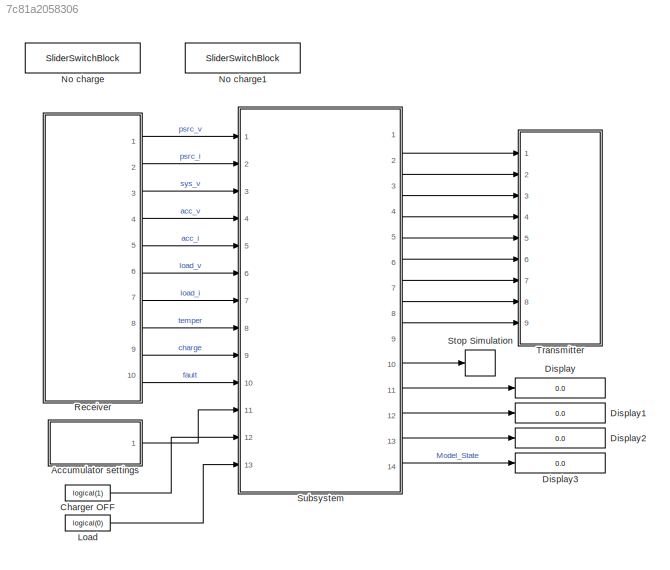
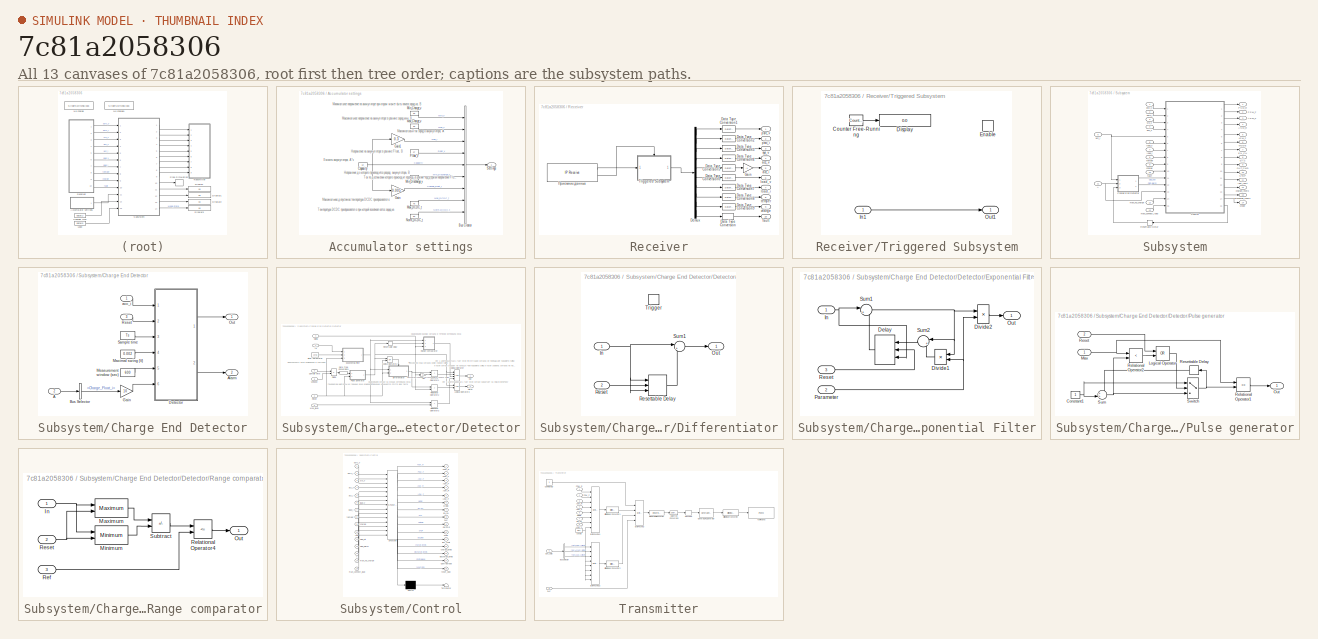
[diagram: thumbnail index - all 13 canvases of the model, root first then tree order]
MODEL slx_7c81a2058306
KIND model
CONFIG AbsTol = auto
CONFIG EnableMultiTasking = off
CONFIG FixedStep = Ts
CONFIG MaxStep = 0.001
CONFIG MinStep = auto
CONFIG PreLoadFcn = load 'MATLAB_accumulator_tester_wrksp.mat'
CONFIG RelTol = 1e-3
CONFIG SampleTimeConstraint = Unconstrained
CONFIG SolverName = FixedStepDiscrete
CONFIG StartTime = 0.0
CONFIG StopTime = inf
WORKSPACE source: mxarray member
WORKSPACE MAX_V: Simulink.Parameter (value not decoded)
WORKSPACE MIN_ACCUM_VOLTAGE: Simulink.Parameter (value not decoded)
WORKSPACE TARGET_ACCUM_CURRENT: Simulink.Parameter (value not decoded)
BLOCK [SubSystem] Accumulator settings
  Ports = [0, 1]
  RequestExecContextInheritance = off
BLOCK [BusCreator] Accumulator settings/Bus Creator
  DisplayOption = bar
  InheritFromInputs = on
  Inputs = 9
  OutDataTypeStr = Bus: Accum_params
  Ports = [9, 1]
BLOCK [Constant] Accumulator settings/Capacity
  NameLocation = top
  OutDataTypeStr = single
  Value = 12
BLOCK [Constant] Accumulator settings/Float_v
  NameLocation = top
  OutDataTypeStr = single
  Value = 27
BLOCK [Gain] Accumulator settings/Gain
  Gain = 0.005
BLOCK [Gain] Accumulator settings/Gain1
  Gain = 0.3
BLOCK [Constant] Accumulator settings/Max_Charge_v
  NameLocation = top
  OutDataTypeStr = single
  Value = 30
BLOCK [Constant] Accumulator settings/Max_DCDC_t
  NameLocation = left
  OutDataTypeStr = single
  Value = 75
BLOCK [Constant] Accumulator settings/Min_Charge_v
  NameLocation = top
  OutDataTypeStr = single
  Value = 20
BLOCK [Constant] Accumulator settings/Min_Discharge_v
  NameLocation = top
  OutDataTypeStr = single
  Value = 19
BLOCK [Constant] Accumulator settings/Norm_DCDC_t
  NameLocation = left
  OutDataTypeStr = single
  Value = 50
BLOCK [Outport] Accumulator settings/Settings
BLOCK [Constant] Charger OFF
  NameLocation = left
  OutDataTypeStr = boolean
  Value = logical(1)
BLOCK [Display] Display
  Decimation = 1
  Ports = [1]
BLOCK [Display] Display1
  Decimation = 1
  Ports = [1]
BLOCK [Display] Display2
  Decimation = 1
  Ports = [1]
BLOCK [Display] Display3
  Decimation = 1
  Ports = [1]
BLOCK [Constant] Load
  NameLocation = left
  OutDataTypeStr = boolean
  Value = logical(0)
BLOCK [SliderSwitchBlock] No charge
BLOCK [SliderSwitchBlock] No charge1
BLOCK [SubSystem] Receiver
  Ports = [0, 10]
  RequestExecContextInheritance = off
BLOCK [DataTypeConversion] Receiver/Data Type Conversion
  OutDataTypeStr = int32
  RndMeth = Floor
  SaturateOnIntegerOverflow = off
BLOCK [DataTypeConversion] Receiver/Data Type Conversion1
  OutDataTypeStr = single
  RndMeth = Floor
  SaturateOnIntegerOverflow = off
BLOCK [DataTypeConversion] Receiver/Data Type Conversion2
  OutDataTypeStr = single
  RndMeth = Floor
  SaturateOnIntegerOverflow = off
BLOCK [DataTypeConversion] Receiver/Data Type Conversion3
  OutDataTypeStr = single
  RndMeth = Floor
  SaturateOnIntegerOverflow = off
BLOCK [DataTypeConversion] Receiver/Data Type Conversion4
  OutDataTypeStr = single
  RndMeth = Floor
  SaturateOnIntegerOverflow = off
BLOCK [DataTypeConversion] Receiver/Data Type Conversion5
  OutDataTypeStr = single
  RndMeth = Floor
  SaturateOnIntegerOverflow = off
BLOCK [DataTypeConversion] Receiver/Data Type Conversion6
  OutDataTypeStr = single
  RndMeth = Floor
  SaturateOnIntegerOverflow = off
BLOCK [DataTypeConversion] Receiver/Data Type Conversion7
  OutDataTypeStr = single
  RndMeth = Floor
  SaturateOnIntegerOverflow = off
BLOCK [DataTypeConversion] Receiver/Data Type Conversion8
  OutDataTypeStr = single
  RndMeth = Floor
  SaturateOnIntegerOverflow = off
BLOCK [DataTypeConversion] Receiver/Data Type Conversion9
  OutDataTypeStr = single
  RndMeth = Floor
  SaturateOnIntegerOverflow = off
BLOCK [Demux] Receiver/Demux
  Outputs = 10
  Ports = [1, 10]
BLOCK [Gain] Receiver/Gain
  Gain = -1
BLOCK [SubSystem] Receiver/Triggered Subsystem
  Ports = [1, 1, 1]
  RequestExecContextInheritance = off
  TreatAsAtomicUnit = on
BLOCK [Reference] Receiver/Triggered Subsystem/Counter Free-Running  REF=simulink/Sources/Counter
Free-Running
  Ports = [0, 1]
  SourceBlock = simulink/Sources/Counter\nFree-Running
  SourceProductBaseCode = SL
  SourceType = Counter Free-Running
BLOCK [Display] Receiver/Triggered Subsystem/Display
  Decimation = 1
  Ports = [1]
BLOCK [EnablePort] Receiver/Triggered Subsystem/Enable
  Ports = []
BLOCK [Inport] Receiver/Triggered Subsystem/In1
BLOCK [Outport] Receiver/Triggered Subsystem/Out1
BLOCK [Outport] Receiver/acc_i
  NameLocation = right
  Port = 5
BLOCK [Outport] Receiver/acc_v
  NameLocation = right
  Port = 4
BLOCK [Outport] Receiver/charge
  NameLocation = right
  Port = 9
BLOCK [Outport] Receiver/fault
  NameLocation = right
  Port = 10
BLOCK [Outport] Receiver/load_i
  NameLocation = right
  Port = 7
BLOCK [Outport] Receiver/load_v
  NameLocation = right
  Port = 6
BLOCK [Outport] Receiver/psrc_i
  NameLocation = right
  Port = 2
BLOCK [Outport] Receiver/psrc_v
  NameLocation = right
BLOCK [Outport] Receiver/sys_v
  NameLocation = right
  Port = 3
BLOCK [Outport] Receiver/temper
  NameLocation = right
  Port = 8
BLOCK [Reference] Receiver/Приемник данных  REF=instrumentlib/TCP//IP Receive
  Ports = [0, 2]
  SourceBlock = instrumentlib/TCP//IP Receive
  SourceProductBaseCode = IC
  SourceType = instrument.system.TCPIPReceive
BLOCK [Stop] Stop Simulation
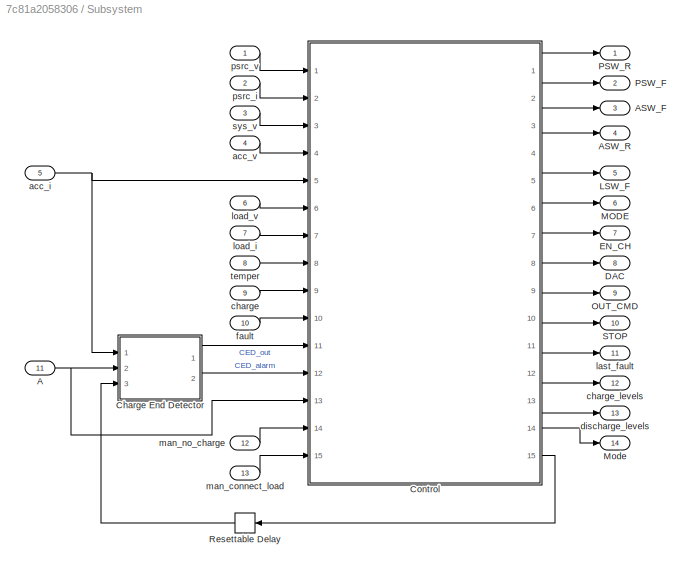
BLOCK [SubSystem] Subsystem
  Ports = [13, 14]
  RequestExecContextInheritance = off
BLOCK [Outport] Subsystem/ STOP
  NameLocation = right
  Port = 10
BLOCK [Inport] Subsystem/A
  NameLocation = left
  Port = 11
BLOCK [Outport] Subsystem/ASW_F
  NameLocation = right
  Port = 3
BLOCK [Outport] Subsystem/ASW_R
  NameLocation = right
  Port = 4
BLOCK [SubSystem] Subsystem/Charge End Detector
  Ports = [3, 2]
  RequestExecContextInheritance = off
BLOCK [Inport] Subsystem/Charge End Detector/A
  NameLocation = left
  OutDataTypeStr = Bus: Accum_params
  Port = 2
BLOCK [Outport] Subsystem/Charge End Detector/Alarm
  NameLocation = right
  OutDataTypeStr = boolean
  Port = 2
BLOCK [BusSelector] Subsystem/Charge End Detector/Bus Selector
  OutputSignals = Charge_Float_i
  Ports = [1, 1]
BLOCK [SubSystem] Subsystem/Charge End Detector/Detector
  Ports = [6, 2]
  RequestExecContextInheritance = off
BLOCK [Outport] Subsystem/Charge End Detector/Detector/Alarm
  Port = 2
BLOCK [DataTypeConversion] Subsystem/Charge End Detector/Detector/Data Type Conversion1
  OutDataTypeStr = uint32
  RndMeth = Floor
  SaturateOnIntegerOverflow = off
BLOCK [SubSystem] Subsystem/Charge End Detector/Detector/Differentiator
  Ports = [2, 1, 0, 1]
  RequestExecContextInheritance = off
  TreatAsAtomicUnit = on
BLOCK [Inport] Subsystem/Charge End Detector/Detector/Differentiator/In
BLOCK [Outport] Subsystem/Charge End Detector/Detector/Differentiator/Out
  SourceOfInitialOutputValue = Input signal
BLOCK [Inport] Subsystem/Charge End Detector/Detector/Differentiator/Reset
  Port = 2
BLOCK [Delay] Subsystem/Charge End Detector/Detector/Differentiator/Resettable Delay
  DelayLength = 1
  ExternalReset = Level
  InitialConditionSource = Input port
  InputPortMap = u0,r5,p4
  Ports = [3, 1]
BLOCK [Sum] Subsystem/Charge End Detector/Detector/Differentiator/Sum1
  Inputs = |+-
  Ports = [2, 1]
BLOCK [TriggerPort] Subsystem/Charge End Detector/Detector/Differentiator/Trigger
  Ports = []
  StatesWhenEnabling = held
  VariantControl = (inherit)
BLOCK [Product] Subsystem/Charge End Detector/Detector/Divide
  Inputs = /*
  Ports = [2, 1]
BLOCK [SubSystem] Subsystem/Charge End Detector/Detector/Exponential Filter
  Ports = [3, 1]
  RequestExecContextInheritance = off
BLOCK [Delay] Subsystem/Charge End Detector/Detector/Exponential Filter/Delay
  DelayLength = 1
  ExternalReset = Rising
  InitialCondition = 0
  InitialConditionSource = Input port
  InputPortMap = u0,r5,p4
  Ports = [3, 1]
BLOCK [Product] Subsystem/Charge End Detector/Detector/Exponential Filter/Divide1
  Inputs = */
  Ports = [2, 1]
BLOCK [Product] Subsystem/Charge End Detector/Detector/Exponential Filter/Divide2
  Inputs = */
  Ports = [2, 1]
BLOCK [Inport] Subsystem/Charge End Detector/Detector/Exponential Filter/In
BLOCK [Outport] Subsystem/Charge End Detector/Detector/Exponential Filter/Out
BLOCK [Inport] Subsystem/Charge End Detector/Detector/Exponential Filter/Parameter
  Port = 2
BLOCK [Inport] Subsystem/Charge End Detector/Detector/Exponential Filter/Reset
  Port = 3
BLOCK [Sum] Subsystem/Charge End Detector/Detector/Exponential Filter/Sum1
  Inputs = |++
  Ports = [2, 1]
BLOCK [Sum] Subsystem/Charge End Detector/Detector/Exponential Filter/Sum2
  Inputs = |+-
  Ports = [2, 1]
BLOCK [Constant] Subsystem/Charge End Detector/Detector/Filter parameter
  OutDataTypeStr = single
  Value = 2048
BLOCK [Gain] Subsystem/Charge End Detector/Detector/Gain
  Gain = -1
BLOCK [Inport] Subsystem/Charge End Detector/Detector/In
  OutDataTypeStr = single
  SampleTime = 0.01
BLOCK [Logic] Subsystem/Charge End Detector/Detector/Logical Operator
  AllPortsSameDT = off
  Inputs = 4
  OutDataTypeStr = boolean
  Ports = [4, 1]
BLOCK [Logic] Subsystem/Charge End Detector/Detector/Logical Operator2
  AllPortsSameDT = off
  Operator = OR
  OutDataTypeStr = boolean
  Ports = [2, 1]
BLOCK [Logic] Subsystem/Charge End Detector/Detector/Logical Operator3
  AllPortsSameDT = off
  OutDataTypeStr = boolean
  Ports = [2, 1]
BLOCK [Inport] Subsystem/Charge End Detector/Detector/Max_level
  OutDataTypeStr = single
  Port = 6
  SampleTime = 0.01
BLOCK [Outport] Subsystem/Charge End Detector/Detector/Out
BLOCK [SubSystem] Subsystem/Charge End Detector/Detector/Pulse generator
  Ports = [2, 1]
  RequestExecContextInheritance = off
BLOCK [Constant] Subsystem/Charge End Detector/Detector/Pulse generator/Constant1
  OutDataTypeStr = uint32
BLOCK [Logic] Subsystem/Charge End Detector/Detector/Pulse generator/Logical Operator
  AllPortsSameDT = off
  Operator = OR
  OutDataTypeStr = boolean
  Ports = [2, 1]
BLOCK [Inport] Subsystem/Charge End Detector/Detector/Pulse generator/Max
BLOCK [Outport] Subsystem/Charge End Detector/Detector/Pulse generator/Out
BLOCK [RelationalOperator] Subsystem/Charge End Detector/Detector/Pulse generator/Relational Operator1
  Operator = ==
  OutDataTypeStr = boolean
  Ports = [2, 1]
  RndMeth = Simplest
BLOCK [RelationalOperator] Subsystem/Charge End Detector/Detector/Pulse generator/Relational Operator2
  Operator = <
  OutDataTypeStr = boolean
  Ports = [2, 1]
  RndMeth = Simplest
BLOCK [Inport] Subsystem/Charge End Detector/Detector/Pulse generator/Reset
  Port = 2
BLOCK [Delay] Subsystem/Charge End Detector/Detector/Pulse generator/Resettable Delay
  DelayLength = 1
  InputPortMap = u0
  Ports = [1, 1]
BLOCK [Sum] Subsystem/Charge End Detector/Detector/Pulse generator/Sum
  Inputs = ++|
  Ports = [2, 1]
BLOCK [Switch] Subsystem/Charge End Detector/Detector/Pulse generator/Switch
  Criteria = u2 > Threshold
  InputSameDT = off
  SaturateOnIntegerOverflow = off
BLOCK [SubSystem] Subsystem/Charge End Detector/Detector/Range comparator
  Ports = [3, 1]
  RequestExecContextInheritance = off
BLOCK [Inport] Subsystem/Charge End Detector/Detector/Range comparator/In
BLOCK [Reference] Subsystem/Charge End Detector/Detector/Range comparator/Maximum  REF=dspstat3/Maximum
  Ports = [2, 1]
  SourceBlock = dspstat3/Maximum
  SourceProductBaseCode = DS
  SourceType = Maximum
  UserDataPersistent = on
BLOCK [Reference] Subsystem/Charge End Detector/Detector/Range comparator/Minimum  REF=dspstat3/Minimum
  Ports = [2, 1]
  SourceBlock = dspstat3/Minimum
  SourceProductBaseCode = DS
  SourceType = Minimum
  UserDataPersistent = on
BLOCK [Outport] Subsystem/Charge End Detector/Detector/Range comparator/Out
BLOCK [Inport] Subsystem/Charge End Detector/Detector/Range comparator/Ref
  Port = 3
BLOCK [RelationalOperator] Subsystem/Charge End Detector/Detector/Range comparator/Relational Operator4
  Operator = <=
  OutDataTypeStr = boolean
  Ports = [2, 1]
  RndMeth = Simplest
BLOCK [Inport] Subsystem/Charge End Detector/Detector/Range comparator/Reset
  Port = 2
BLOCK [Sum] Subsystem/Charge End Detector/Detector/Range comparator/Subtract
  IconShape = rectangular
  Inputs = +-
  Ports = [2, 1]
BLOCK [RelationalOperator] Subsystem/Charge End Detector/Detector/Relational Operator1
  Operator = >
  OutDataTypeStr = boolean
  Ports = [2, 1]
  RndMeth = Simplest
BLOCK [RelationalOperator] Subsystem/Charge End Detector/Detector/Relational Operator2
  Operator = >
  OutDataTypeStr = boolean
  Ports = [2, 1]
  RndMeth = Simplest
BLOCK [RelationalOperator] Subsystem/Charge End Detector/Detector/Relational Operator3
  Operator = <
  OutDataTypeStr = boolean
  Ports = [2, 1]
  RndMeth = Simplest
BLOCK [Inport] Subsystem/Charge End Detector/Detector/Reset
  OutDataTypeStr = boolean
  Port = 2
  SampleTime = 0.01
BLOCK [Delay] Subsystem/Charge End Detector/Detector/Resettable Delay
  DelayLength = 1
  InputPortMap = u0
  Ports = [1, 1]
BLOCK [Inport] Subsystem/Charge End Detector/Detector/Sample time
  OutDataTypeStr = single
  Port = 3
  SampleTime = 0.01
BLOCK [Inport] Subsystem/Charge End Detector/Detector/Swing
  OutDataTypeStr = single
  Port = 4
  SampleTime = 0.01
BLOCK [Inport] Subsystem/Charge End Detector/Detector/Window
  OutDataTypeStr = single
  Port = 5
  SampleTime = 0.01
BLOCK [Gain] Subsystem/Charge End Detector/Gain
  Gain = 10
BLOCK [Constant] Subsystem/Charge End Detector/Maximal swing (V)
  OutDataTypeStr = single
  Value = 0.002
BLOCK [Constant] Subsystem/Charge End Detector/Measurement window (sec)
  OutDataTypeStr = single
  Value = 600
BLOCK [Outport] Subsystem/Charge End Detector/Out
  NameLocation = right
  OutDataTypeStr = boolean
BLOCK [Inport] Subsystem/Charge End Detector/Reset
  NameLocation = left
  Port = 3
BLOCK [Constant] Subsystem/Charge End Detector/Sample time
  OutDataTypeStr = single
  Value = Ts
BLOCK [Inport] Subsystem/Charge End Detector/acc_i
  NameLocation = left
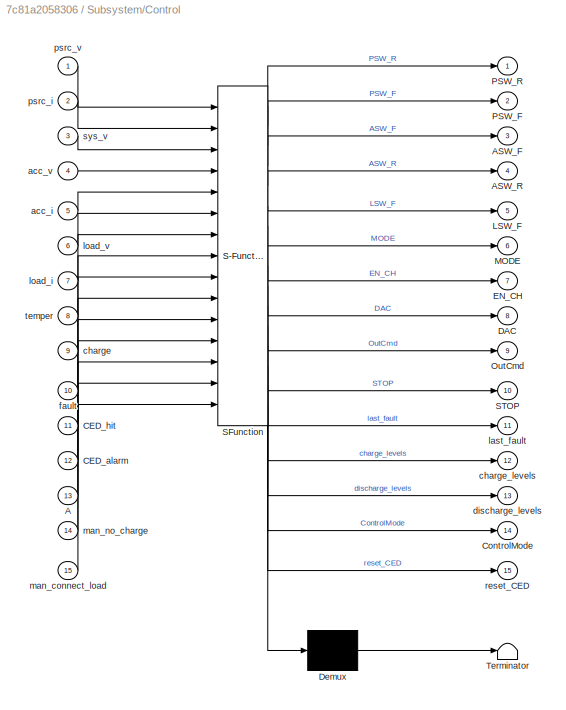
BLOCK [SubSystem] Subsystem/Control
  ErrorFcn = Stateflow.Translate.translate
  PermitHierarchicalResolution = ExplicitOnly
  Ports = [15, 15]
  RequestExecContextInheritance = off
  SFBlockType = Chart
  TreatAsAtomicUnit = on
BLOCK [Demux] Subsystem/Control/ Demux 
  Outputs = 1
  Ports = [1, 1]
BLOCK [S-Function] Subsystem/Control/ SFunction 
  EnableBusSupport = on
  FunctionName = sf_sfun
  PortCounts = [15 16]
  Ports = [15, 16]
  SFcnIsStateOwnerBlock = off
  SFunctionDeploymentMode = off
  Tag = Stateflow S-Function 3
BLOCK [Outport] Subsystem/Control/ STOP
  Port = 10
BLOCK [Terminator] Subsystem/Control/ Terminator 
BLOCK [Inport] Subsystem/Control/A
  Port = 13
BLOCK [Outport] Subsystem/Control/ASW_F
  Port = 3
BLOCK [Outport] Subsystem/Control/ASW_R
  Port = 4
BLOCK [Inport] Subsystem/Control/CED_alarm
  Port = 12
BLOCK [Inport] Subsystem/Control/CED_hit
  Port = 11
BLOCK [Outport] Subsystem/Control/ControlMode
  Port = 14
BLOCK [Outport] Subsystem/Control/DAC
  Port = 8
BLOCK [Outport] Subsystem/Control/EN_CH
  Port = 7
BLOCK [Outport] Subsystem/Control/LSW_F
  Port = 5
BLOCK [Outport] Subsystem/Control/MODE
  Port = 6
BLOCK [Outport] Subsystem/Control/OutCmd
  Port = 9
BLOCK [Outport] Subsystem/Control/PSW_F
  Port = 2
BLOCK [Outport] Subsystem/Control/PSW_R
BLOCK [Inport] Subsystem/Control/acc_i
  Port = 5
BLOCK [Inport] Subsystem/Control/acc_v
  Port = 4
BLOCK [Inport] Subsystem/Control/charge
  Port = 9
BLOCK [Outport] Subsystem/Control/charge_levels
  Port = 12
BLOCK [Outport] Subsystem/Control/discharge_levels
  Port = 13
BLOCK [Inport] Subsystem/Control/fault
  Port = 10
BLOCK [Outport] Subsystem/Control/last_fault
  Port = 11
BLOCK [Inport] Subsystem/Control/load_i
  Port = 7
BLOCK [Inport] Subsystem/Control/load_v
  Port = 6
BLOCK [Inport] Subsystem/Control/man_connect_load
  Port = 15
BLOCK [Inport] Subsystem/Control/man_no_charge
  Port = 14
BLOCK [Inport] Subsystem/Control/psrc_i
  Port = 2
BLOCK [Inport] Subsystem/Control/psrc_v
BLOCK [Outport] Subsystem/Control/reset_CED
  Port = 15
BLOCK [Inport] Subsystem/Control/sys_v
  Port = 3
BLOCK [Inport] Subsystem/Control/temper
  Port = 8
BLOCK [Outport] Subsystem/DAC
  NameLocation = right
  Port = 8
BLOCK [Outport] Subsystem/EN_CH
  NameLocation = right
  Port = 7
BLOCK [Outport] Subsystem/LSW_F
  NameLocation = right
  Port = 5
BLOCK [Outport] Subsystem/MODE
  NameLocation = right
  Port = 6
BLOCK [Outport] Subsystem/Mode
  NameLocation = right
  Port = 14
BLOCK [Outport] Subsystem/OUT_CMD
  NameLocation = right
  Port = 9
BLOCK [Outport] Subsystem/PSW_F
  NameLocation = right
  Port = 2
BLOCK [Outport] Subsystem/PSW_R
  NameLocation = right
BLOCK [Delay] Subsystem/Resettable Delay
  DelayLength = 1
  InputPortMap = u0
  Ports = [1, 1]
BLOCK [Inport] Subsystem/acc_i
  NameLocation = left
  Port = 5
BLOCK [Inport] Subsystem/acc_v
  NameLocation = left
  Port = 4
BLOCK [Inport] Subsystem/charge
  NameLocation = left
  Port = 9
BLOCK [Outport] Subsystem/charge_levels
  NameLocation = right
  Port = 12
BLOCK [Outport] Subsystem/discharge_levels
  NameLocation = right
  Port = 13
BLOCK [Inport] Subsystem/fault
  NameLocation = left
  Port = 10
BLOCK [Outport] Subsystem/last_fault
  NameLocation = right
  Port = 11
BLOCK [Inport] Subsystem/load_i
  NameLocation = left
  Port = 7
BLOCK [Inport] Subsystem/load_v
  NameLocation = left
  Port = 6
BLOCK [Inport] Subsystem/man_connect_load
  NameLocation = left
  Port = 13
BLOCK [Inport] Subsystem/man_no_charge
  NameLocation = left
  Port = 12
BLOCK [Inport] Subsystem/psrc_i
  NameLocation = left
  Port = 2
BLOCK [Inport] Subsystem/psrc_v
  NameLocation = left
BLOCK [Inport] Subsystem/sys_v
  NameLocation = left
  Port = 3
BLOCK [Inport] Subsystem/temper
  NameLocation = left
  Port = 8
BLOCK [SubSystem] Transmitter
  Ports = [9]
  RequestExecContextInheritance = off
BLOCK [Inport] Transmitter/ASW_F
  NameLocation = left
  OutDataTypeStr = boolean
  Port = 4
  PortDimensions = 1
  VarSizeSig = No
BLOCK [Inport] Transmitter/ASW_R
  NameLocation = left
  OutDataTypeStr = boolean
  Port = 3
  PortDimensions = 1
  VarSizeSig = No
BLOCK [Reference] Transmitter/Bit to Integer Converter  REF=simulink/Logic and Bit
Operations/Bit to Integer
Converter
  Ports = [1, 1]
  SourceBlock = simulink/Logic and Bit\nOperations/Bit to Integer\nConverter
  SourceProductBaseCode = SL
  SourceType = Bit to Integer Converter
BLOCK [Reference] Transmitter/Bit to Integer Converter1  REF=simulink/Logic and Bit
Operations/Bit to Integer
Converter
  Ports = [1, 1]
  SourceBlock = simulink/Logic and Bit\nOperations/Bit to Integer\nConverter
  SourceProductBaseCode = SL
  SourceType = Bit to Integer Converter
BLOCK [Reference] Transmitter/Bit to Integer Converter2  REF=simulink/Logic and Bit
Operations/Bit to Integer
Converter
  Ports = [1, 1]
  SourceBlock = simulink/Logic and Bit\nOperations/Bit to Integer\nConverter
  SourceProductBaseCode = SL
  SourceType = Bit to Integer Converter
BLOCK [BusSelector] Transmitter/Bus Selector
  OutputSignals = Set_PSRC_i_offset,Set_Accum_i_offset,Set_Load_i_offset
  Ports = [1, 3]
BLOCK [Reference] Transmitter/Byte Packing  REF=slrealtimeutilitieslib/Byte Packing
  Ports = [4, 1]
  SourceBlock = slrealtimeutilitieslib/Byte Packing
  SourceProductBaseCode = XP
  SourceType = slrealtimebytepacking
BLOCK [Reference] Transmitter/Byte Packing1  REF=slrealtimeutilitieslib/Byte Packing
  Ports = [8, 1]
  SourceBlock = slrealtimeutilitieslib/Byte Packing
  SourceProductBaseCode = XP
  SourceType = slrealtimebytepacking
BLOCK [Reference] Transmitter/Byte Packing2  REF=slrealtimeutilitieslib/Byte Packing
  Ports = [8, 1]
  SourceBlock = slrealtimeutilitieslib/Byte Packing
  SourceProductBaseCode = XP
  SourceType = slrealtimebytepacking
BLOCK [Constant] Transmitter/Command ID
  OutDataTypeStr = uint32
  Value = 3
BLOCK [Inport] Transmitter/DAC
  OutDataTypeStr = uint16
  Port = 8
  PortDimensions = 1
  SignalType = real
  VarSizeSig = No
BLOCK [DataTypeConversion] Transmitter/Data Type Conversion
  OutDataTypeStr = boolean
  RndMeth = Floor
  SaturateOnIntegerOverflow = off
BLOCK [Inport] Transmitter/EN_CH
  NameLocation = left
  OutDataTypeStr = boolean
  Port = 7
  PortDimensions = 1
  VarSizeSig = No
BLOCK [Reference] Transmitter/General CRC Generator  REF=commcrc2/General CRC
Generator
  Ports = [1, 1]
  SourceBlock = commcrc2/General CRC\nGenerator
  SourceProductBaseCode = CM
  SourceType = General CRC Generator
BLOCK [Reference] Transmitter/Integer to Bit Converter  REF=simulink/Logic and Bit
Operations/Integer to Bit
Converter
  Ports = [1, 1]
  SourceBlock = simulink/Logic and Bit\nOperations/Integer to Bit\nConverter
  SourceProductBaseCode = SL
  SourceType = Integer to Bit Converter
BLOCK [Inport] Transmitter/LSW_F
  NameLocation = left
  OutDataTypeStr = boolean
  Port = 5
  PortDimensions = 1
  VarSizeSig = No
BLOCK [Inport] Transmitter/MODE
  NameLocation = left
  OutDataTypeStr = boolean
  Port = 6
  PortDimensions = 1
  VarSizeSig = No
BLOCK [Inport] Transmitter/OUT_CMD
  OutDataTypeStr = Bus: OutCommands
  Port = 9
  PortDimensions = 1
  SignalType = real
  VarSizeSig = No
BLOCK [Inport] Transmitter/PSW_F
  NameLocation = left
  OutDataTypeStr = boolean
  Port = 2
  PortDimensions = 1
  VarSizeSig = No
BLOCK [Inport] Transmitter/PSW_R
  NameLocation = left
  OutDataTypeStr = boolean
  PortDimensions = 1
  VarSizeSig = No
BLOCK [Reshape] Transmitter/Reshape
  OutputDimensionality = Customize
  OutputDimensions = [64,1]
  Ports = [1, 1]
BLOCK [Reference] Transmitter/TCP//IP Send  REF=instrumentlib/TCP//IP Send
  Ports = [1]
  SourceBlock = instrumentlib/TCP//IP Send
  SourceProductBaseCode = IC
  SourceType = instrument.system.TCPIPSend
BLOCK [Constant] Transmitter/const0
  OutDataTypeStr = boolean
  Value = false
ANNOTATION Accumulator settings: Емкость аккумулятора, А*ч
ANNOTATION Accumulator settings: Максимальная допустимая температура DCDC преобразователя
ANNOTATION Accumulator settings: Максимальное напряжение на аккмуляторе в режиме зарядкми, В
ANNOTATION Accumulator settings: Максимальный ток заряда аккумулятора, А
ANNOTATION Accumulator settings: Минимальное напряжение на аккмуляторе при ктором может быть начата зарядка, В
ANNOTATION Accumulator settings: Напряжение до которого производится разряд аккумулятора, В
ANNOTATION Accumulator settings: Напряжение на аккумуляторе в режиме Float, В
ANNOTATION Accumulator settings: Температура DCDC преобразователя при которой возобновляется зарадка
ANNOTATION Accumulator settings: Ток по достижении которого происходит переход в режим поддержки напряжения Float, А
ANNOTATION Subsystem/Charge End Detector/Detector: Генерируем импульсы на границе окна измерения
ANNOTATION Subsystem/Charge End Detector/Detector: Длительность окна измерения в секундах
ANNOTATION Subsystem/Charge End Detector/Detector: Лог 1 длительностью 1 такт если сигнал нарастает на любую величину
ANNOTATION Subsystem/Charge End Detector/Detector: Лог 1 длительностью 1 такт если флуктуации сигнала не превышают параметр swing и если сигнал спадает не больше чем параметр swing и если уровень сигнала не превышает Max_level
ANNOTATION Subsystem/Charge End Detector/Detector: Сравниваем размах сигнала в течении интервала окна
ANNOTATION Subsystem/Charge End Detector/Detector: Сравниваем сигнал на концах интервала окна. Сравнение начинается спустя два такта
ANNOTATION Subsystem/Charge End Detector/Detector: Фиксируем подъем сигнала выше уровня swing
ANNOTATION Subsystem/Charge End Detector/Detector: Фиксируем спад сигнала ниже уровня swing
LINE Accumulator settings/Bus Creator:1 -> Accumulator settings/Settings:1
NET Accumulator settings/Capacity:1 -> Accumulator settings/Bus Creator:5, Accumulator settings/Gain1:1, Accumulator settings/Gain:1
LINE Accumulator settings/Float_v:1 -> Accumulator settings/Bus Creator:4
LINE Accumulator settings/Gain1:1 -> Accumulator settings/Bus Creator:3
LINE Accumulator settings/Gain:1 -> Accumulator settings/Bus Creator:7
LINE Accumulator settings/Max_Charge_v:1 -> Accumulator settings/Bus Creator:2
LINE Accumulator settings/Max_DCDC_t:1 -> Accumulator settings/Bus Creator:8
LINE Accumulator settings/Min_Charge_v:1 -> Accumulator settings/Bus Creator:1
LINE Accumulator settings/Min_Discharge_v:1 -> Accumulator settings/Bus Creator:6
LINE Accumulator settings/Norm_DCDC_t:1 -> Accumulator settings/Bus Creator:9
LINE Accumulator settings:1 -> Subsystem:11
LINE Charger OFF:1 -> Subsystem:12
LINE Load:1 -> Subsystem:13
LINE Receiver/Data Type Conversion1:1 -> Receiver/psrc_v:1
LINE Receiver/Data Type Conversion2:1 -> Receiver/psrc_i:1
LINE Receiver/Data Type Conversion3:1 -> Receiver/sys_v:1
LINE Receiver/Data Type Conversion4:1 -> Receiver/acc_v:1
LINE Receiver/Data Type Conversion5:1 -> Receiver/Gain:1
LINE Receiver/Data Type Conversion6:1 -> Receiver/load_v:1
LINE Receiver/Data Type Conversion7:1 -> Receiver/load_i:1
LINE Receiver/Data Type Conversion8:1 -> Receiver/temper:1
LINE Receiver/Data Type Conversion9:1 -> Receiver/charge:1
LINE Receiver/Data Type Conversion:1 -> Receiver/fault:1
LINE Receiver/Demux:1 -> Receiver/Data Type Conversion1:1
LINE Receiver/Demux:10 -> Receiver/Data Type Conversion:1
LINE Receiver/Demux:2 -> Receiver/Data Type Conversion2:1
LINE Receiver/Demux:3 -> Receiver/Data Type Conversion3:1
LINE Receiver/Demux:4 -> Receiver/Data Type Conversion4:1
LINE Receiver/Demux:5 -> Receiver/Data Type Conversion5:1
LINE Receiver/Demux:6 -> Receiver/Data Type Conversion6:1
LINE Receiver/Demux:7 -> Receiver/Data Type Conversion7:1
LINE Receiver/Demux:8 -> Receiver/Data Type Conversion8:1
LINE Receiver/Demux:9 -> Receiver/Data Type Conversion9:1
LINE Receiver/Gain:1 -> Receiver/acc_i:1
LINE Receiver/Triggered Subsystem/Counter Free-Running:1 -> Receiver/Triggered Subsystem/Display:1
LINE Receiver/Triggered Subsystem/In1:1 -> Receiver/Triggered Subsystem/Out1:1
LINE Receiver/Triggered Subsystem:1 -> Receiver/Demux:1
LINE Receiver/Приемник данных:1 -> Receiver/Triggered Subsystem:1
LINE Receiver/Приемник данных:2 -> Receiver/Triggered Subsystem:enable
LINE Receiver:1 -> Subsystem:1
LINE Receiver:10 -> Subsystem:10
LINE Receiver:2 -> Subsystem:2
LINE Receiver:3 -> Subsystem:3
LINE Receiver:4 -> Subsystem:4
LINE Receiver:5 -> Subsystem:5
LINE Receiver:6 -> Subsystem:6
LINE Receiver:7 -> Subsystem:7
LINE Receiver:8 -> Subsystem:8
LINE Receiver:9 -> Subsystem:9
NET Subsystem/A:1 -> Subsystem/Charge End Detector:2, Subsystem/Control:13
LINE Subsystem/Charge End Detector/A:1 -> Subsystem/Charge End Detector/Bus Selector:1
LINE Subsystem/Charge End Detector/Bus Selector:1 -> Subsystem/Charge End Detector/Gain:1
LINE Subsystem/Charge End Detector/Detector/Data Type Conversion1:1 -> Subsystem/Charge End Detector/Detector/Pulse generator:1
NET Subsystem/Charge End Detector/Detector/Differentiator/In:1 -> Subsystem/Charge End Detector/Detector/Differentiator/Resettable Delay:1, Subsystem/Charge End Detector/Detector/Differentiator/Resettable Delay:3, Subsystem/Charge End Detector/Detector/Differentiator/Sum1:1
LINE Subsystem/Charge End Detector/Detector/Differentiator/Reset:1 -> Subsystem/Charge End Detector/Detector/Differentiator/Resettable Delay:2
LINE Subsystem/Charge End Detector/Detector/Differentiator/Resettable Delay:1 -> Subsystem/Charge End Detector/Detector/Differentiator/Sum1:2
LINE Subsystem/Charge End Detector/Detector/Differentiator/Sum1:1 -> Subsystem/Charge End Detector/Detector/Differentiator/Out:1
NET Subsystem/Charge End Detector/Detector/Differentiator:1 -> Subsystem/Charge End Detector/Detector/Relational Operator1:1, Subsystem/Charge End Detector/Detector/Relational Operator2:1
LINE Subsystem/Charge End Detector/Detector/Divide:1 -> Subsystem/Charge End Detector/Detector/Data Type Conversion1:1
LINE Subsystem/Charge End Detector/Detector/Exponential Filter/Delay:1 -> Subsystem/Charge End Detector/Detector/Exponential Filter/Sum1:2
LINE Subsystem/Charge End Detector/Detector/Exponential Filter/Divide1:1 -> Subsystem/Charge End Detector/Detector/Exponential Filter/Sum2:2
LINE Subsystem/Charge End Detector/Detector/Exponential Filter/Divide2:1 -> Subsystem/Charge End Detector/Detector/Exponential Filter/Out:1
NET Subsystem/Charge End Detector/Detector/Exponential Filter/In:1 -> Subsystem/Charge End Detector/Detector/Exponential Filter/Delay:3, Subsystem/Charge End Detector/Detector/Exponential Filter/Sum1:1
NET Subsystem/Charge End Detector/Detector/Exponential Filter/Parameter:1 -> Subsystem/Charge End Detector/Detector/Exponential Filter/Divide1:2, Subsystem/Charge End Detector/Detector/Exponential Filter/Divide2:2
LINE Subsystem/Charge End Detector/Detector/Exponential Filter/Reset:1 -> Subsystem/Charge End Detector/Detector/Exponential Filter/Delay:2
NET Subsystem/Charge End Detector/Detector/Exponential Filter/Sum1:1 -> Subsystem/Charge End Detector/Detector/Exponential Filter/Divide1:1, Subsystem/Charge End Detector/Detector/Exponential Filter/Divide2:1, Subsystem/Charge End Detector/Detector/Exponential Filter/Sum2:1
LINE Subsystem/Charge End Detector/Detector/Exponential Filter/Sum2:1 -> Subsystem/Charge End Detector/Detector/Exponential Filter/Delay:1
NET Subsystem/Charge End Detector/Detector/Exponential Filter:1 -> Subsystem/Charge End Detector/Detector/Differentiator:1, Subsystem/Charge End Detector/Detector/Range comparator:1, Subsystem/Charge End Detector/Detector/Relational Operator3:1
LINE Subsystem/Charge End Detector/Detector/Filter parameter:1 -> Subsystem/Charge End Detector/Detector/Exponential Filter:2
LINE Subsystem/Charge End Detector/Detector/Gain:1 -> Subsystem/Charge End Detector/Detector/Relational Operator1:2
LINE Subsystem/Charge End Detector/Detector/In:1 -> Subsystem/Charge End Detector/Detector/Exponential Filter:1
LINE Subsystem/Charge End Detector/Detector/Logical Operator2:1 -> Subsystem/Charge End Detector/Detector/Differentiator:trigger
LINE Subsystem/Charge End Detector/Detector/Logical Operator3:1 -> Subsystem/Charge End Detector/Detector/Alarm:1
LINE Subsystem/Charge End Detector/Detector/Logical Operator:1 -> Subsystem/Charge End Detector/Detector/Out:1
LINE Subsystem/Charge End Detector/Detector/Max_level:1 -> Subsystem/Charge End Detector/Detector/Relational Operator3:2
NET Subsystem/Charge End Detector/Detector/Pulse generator/Constant1:1 -> Subsystem/Charge End Detector/Detector/Pulse generator/Sum:2, Subsystem/Charge End Detector/Detector/Pulse generator/Switch:1
LINE Subsystem/Charge End Detector/Detector/Pulse generator/Logical Operator:1 -> Subsystem/Charge End Detector/Detector/Pulse generator/Switch:2
NET Subsystem/Charge End Detector/Detector/Pulse generator/Max:1 -> Subsystem/Charge End Detector/Detector/Pulse generator/Relational Operator1:1, Subsystem/Charge End Detector/Detector/Pulse generator/Relational Operator2:1
LINE Subsystem/Charge End Detector/Detector/Pulse generator/Relational Operator1:1 -> Subsystem/Charge End Detector/Detector/Pulse generator/Out:1
LINE Subsystem/Charge End Detector/Detector/Pulse generator/Relational Operator2:1 -> Subsystem/Charge End Detector/Detector/Pulse generator/Logical Operator:2
LINE Subsystem/Charge End Detector/Detector/Pulse generator/Reset:1 -> Subsystem/Charge End Detector/Detector/Pulse generator/Logical Operator:1
LINE Subsystem/Charge End Detector/Detector/Pulse generator/Resettable Delay:1 -> Subsystem/Charge End Detector/Detector/Pulse generator/Sum:1
NET Subsystem/Charge End Detector/Detector/Pulse generator/Sum:1 -> Subsystem/Charge End Detector/Detector/Pulse generator/Relational Operator2:2, Subsystem/Charge End Detector/Detector/Pulse generator/Switch:3
NET Subsystem/Charge End Detector/Detector/Pulse generator/Switch:1 -> Subsystem/Charge End Detector/Detector/Pulse generator/Relational Operator1:2, Subsystem/Charge End Detector/Detector/Pulse generator/Resettable Delay:1
NET Subsystem/Charge End Detector/Detector/Pulse generator:1 -> Subsystem/Charge End Detector/Detector/Logical Operator2:1, Subsystem/Charge End Detector/Detector/Logical Operator3:1, Subsystem/Charge End Detector/Detector/Logical Operator:1, Subsystem/Charge End Detector/Detector/Resettable Delay:1
NET Subsystem/Charge End Detector/Detector/Range comparator/In:1 -> Subsystem/Charge End Detector/Detector/Range comparator/Maximum:1, Subsystem/Charge End Detector/Detector/Range comparator/Minimum:1
LINE Subsystem/Charge End Detector/Detector/Range comparator/Maximum:1 -> Subsystem/Charge End Detector/Detector/Range comparator/Subtract:1
LINE Subsystem/Charge End Detector/Detector/Range comparator/Minimum:1 -> Subsystem/Charge End Detector/Detector/Range comparator/Subtract:2
LINE Subsystem/Charge End Detector/Detector/Range comparator/Ref:1 -> Subsystem/Charge End Detector/Detector/Range comparator/Relational Operator4:2
LINE Subsystem/Charge End Detector/Detector/Range comparator/Relational Operator4:1 -> Subsystem/Charge End Detector/Detector/Range comparator/Out:1
NET Subsystem/Charge End Detector/Detector/Range comparator/Reset:1 -> Subsystem/Charge End Detector/Detector/Range comparator/Maximum:2, Subsystem/Charge End Detector/Detector/Range comparator/Minimum:2
LINE Subsystem/Charge End Detector/Detector/Range comparator/Subtract:1 -> Subsystem/Charge End Detector/Detector/Range comparator/Relational Operator4:1
LINE Subsystem/Charge End Detector/Detector/Range comparator:1 -> Subsystem/Charge End Detector/Detector/Logical Operator:3
LINE Subsystem/Charge End Detector/Detector/Relational Operator1:1 -> Subsystem/Charge End Detector/Detector/Logical Operator:2
LINE Subsystem/Charge End Detector/Detector/Relational Operator2:1 -> Subsystem/Charge End Detector/Detector/Logical Operator3:2
LINE Subsystem/Charge End Detector/Detector/Relational Operator3:1 -> Subsystem/Charge End Detector/Detector/Logical Operator:4
NET Subsystem/Charge End Detector/Detector/Reset:1 -> Subsystem/Charge End Detector/Detector/Differentiator:2, Subsystem/Charge End Detector/Detector/Exponential Filter:3, Subsystem/Charge End Detector/Detector/Logical Operator2:2, Subsystem/Charge End Detector/Detector/Pulse generator:2
LINE Subsystem/Charge End Detector/Detector/Resettable Delay:1 -> Subsystem/Charge End Detector/Detector/Range comparator:2
LINE Subsystem/Charge End Detector/Detector/Sample time:1 -> Subsystem/Charge End Detector/Detector/Divide:1
NET Subsystem/Charge End Detector/Detector/Swing:1 -> Subsystem/Charge End Detector/Detector/Gain:1, Subsystem/Charge End Detector/Detector/Range comparator:3, Subsystem/Charge End Detector/Detector/Relational Operator2:2
LINE Subsystem/Charge End Detector/Detector/Window:1 -> Subsystem/Charge End Detector/Detector/Divide:2
LINE Subsystem/Charge End Detector/Detector:1 -> Subsystem/Charge End Detector/Out:1
LINE Subsystem/Charge End Detector/Detector:2 -> Subsystem/Charge End Detector/Alarm:1
LINE Subsystem/Charge End Detector/Gain:1 -> Subsystem/Charge End Detector/Detector:6
LINE Subsystem/Charge End Detector/Maximal swing (V):1 -> Subsystem/Charge End Detector/Detector:4
LINE Subsystem/Charge End Detector/Measurement window (sec):1 -> Subsystem/Charge End Detector/Detector:5
LINE Subsystem/Charge End Detector/Reset:1 -> Subsystem/Charge End Detector/Detector:2
LINE Subsystem/Charge End Detector/Sample time:1 -> Subsystem/Charge End Detector/Detector:3
LINE Subsystem/Charge End Detector/acc_i:1 -> Subsystem/Charge End Detector/Detector:1
LINE Subsystem/Charge End Detector:1 -> Subsystem/Control:11
LINE Subsystem/Charge End Detector:2 -> Subsystem/Control:12
LINE Subsystem/Control:1 -> Subsystem/PSW_R:1
LINE Subsystem/Control:10 -> Subsystem/ STOP:1
LINE Subsystem/Control:11 -> Subsystem/last_fault:1
LINE Subsystem/Control:12 -> Subsystem/charge_levels:1
LINE Subsystem/Control:13 -> Subsystem/discharge_levels:1
LINE Subsystem/Control:14 -> Subsystem/Mode:1
LINE Subsystem/Control:15 -> Subsystem/Resettable Delay:1
LINE Subsystem/Control:2 -> Subsystem/PSW_F:1
LINE Subsystem/Control:3 -> Subsystem/ASW_F:1
LINE Subsystem/Control:4 -> Subsystem/ASW_R:1
LINE Subsystem/Control:5 -> Subsystem/LSW_F:1
LINE Subsystem/Control:6 -> Subsystem/MODE:1
LINE Subsystem/Control:7 -> Subsystem/EN_CH:1
LINE Subsystem/Control:8 -> Subsystem/DAC:1
LINE Subsystem/Control:9 -> Subsystem/OUT_CMD:1
LINE Subsystem/Resettable Delay:1 -> Subsystem/Charge End Detector:3
NET Subsystem/acc_i:1 -> Subsystem/Charge End Detector:1, Subsystem/Control:5
LINE Subsystem/acc_v:1 -> Subsystem/Control:4
LINE Subsystem/charge:1 -> Subsystem/Control:9
LINE Subsystem/fault:1 -> Subsystem/Control:10
LINE Subsystem/load_i:1 -> Subsystem/Control:7
LINE Subsystem/load_v:1 -> Subsystem/Control:6
LINE Subsystem/man_connect_load:1 -> Subsystem/Control:15
LINE Subsystem/man_no_charge:1 -> Subsystem/Control:14
LINE Subsystem/psrc_i:1 -> Subsystem/Control:2
LINE Subsystem/psrc_v:1 -> Subsystem/Control:1
LINE Subsystem/sys_v:1 -> Subsystem/Control:3
LINE Subsystem/temper:1 -> Subsystem/Control:8
LINE Subsystem:1 -> Transmitter:1
LINE Subsystem:10 -> Stop Simulation:1
LINE Subsystem:11 -> Display:1
LINE Subsystem:12 -> Display1:1
LINE Subsystem:13 -> Display2:1
LINE Subsystem:14 -> Display3:1
LINE Subsystem:2 -> Transmitter:2
LINE Subsystem:3 -> Transmitter:3
LINE Subsystem:4 -> Transmitter:4
LINE Subsystem:5 -> Transmitter:5
LINE Subsystem:6 -> Transmitter:6
LINE Subsystem:7 -> Transmitter:7
LINE Subsystem:8 -> Transmitter:8
LINE Subsystem:9 -> Transmitter:9
LINE Transmitter/ASW_F:1 -> Transmitter/Byte Packing1:4
LINE Transmitter/ASW_R:1 -> Transmitter/Byte Packing1:3
LINE Transmitter/Bit to Integer Converter1:1 -> Transmitter/Byte Packing:2
LINE Transmitter/Bit to Integer Converter2:1 -> Transmitter/Byte Packing:3
LINE Transmitter/Bit to Integer Converter:1 -> Transmitter/TCP//IP Send:1
LINE Transmitter/Bus Selector:1 -> Transmitter/Byte Packing2:1
LINE Transmitter/Bus Selector:2 -> Transmitter/Byte Packing2:2
LINE Transmitter/Bus Selector:3 -> Transmitter/Byte Packing2:3
LINE Transmitter/Byte Packing1:1 -> Transmitter/Bit to Integer Converter1:1
LINE Transmitter/Byte Packing2:1 -> Transmitter/Bit to Integer Converter2:1
LINE Transmitter/Byte Packing:1 -> Transmitter/Integer to Bit Converter:1
LINE Transmitter/Command ID:1 -> Transmitter/Byte Packing:1
LINE Transmitter/DAC:1 -> Transmitter/Byte Packing:4
LINE Transmitter/Data Type Conversion:1 -> Transmitter/Reshape:1
LINE Transmitter/EN_CH:1 -> Transmitter/Byte Packing1:6
LINE Transmitter/General CRC Generator:1 -> Transmitter/Bit to Integer Converter:1
LINE Transmitter/Integer to Bit Converter:1 -> Transmitter/Data Type Conversion:1
LINE Transmitter/LSW_F:1 -> Transmitter/Byte Packing1:7
LINE Transmitter/MODE:1 -> Transmitter/Byte Packing1:5
LINE Transmitter/OUT_CMD:1 -> Transmitter/Bus Selector:1
LINE Transmitter/PSW_F:1 -> Transmitter/Byte Packing1:2
LINE Transmitter/PSW_R:1 -> Transmitter/Byte Packing1:1
LINE Transmitter/Reshape:1 -> Transmitter/General CRC Generator:1
NET Transmitter/const0:1 -> Transmitter/Byte Packing1:8, Transmitter/Byte Packing2:4, Transmitter/Byte Packing2:5, Transmitter/Byte Packing2:6, Transmitter/Byte Packing2:7, Transmitter/Byte Packing2:8
note: NET lines group one-source signal fan-out (src -> all destinations, sorted); 1:1 wires keep LINE
CHART Subsystem/Control states=68 transitions=79
  STATE_LABEL 'Continues_mode'
  STATE_LABEL '{MODE = false;}'
  STATE_LABEL 'PREPARATION\n'
  STATE_LABEL 'S0'
  STATE_LABEL 'S1\nen:\nPSW_R = true;\nPSW_F = true;\nASW_F = false;\nASW_R = false;\nLSW_F = false;\nPulseSkiping_mode;\nEN_CH = false;\nDAC = V_to_DAC(single(0));'
  STATE_LABEL 'S2\nen:\nOutCmd.Set_Load_i_offset=true;\nOutCmd.Set_Accum_i_offset=true;\n'
  STATE_LABEL 'S3\nen:\nOutCmd.Set_Load_i_offset=false;\nOutCmd.Set_Accum_i_offset=false;\nPSW_R = false;'
  STATE_LABEL 'S4\nen:\nASW_F = true;\n'
  STATE_LABEL 'S5\nen:\nPSW_F = false;\nASW_R = true;\n'
  STATE_LABEL 'S6\nen:\nOutCmd.Set_PSRC_i_offset=true;'
  STATE_LABEL 'S7\nen:\nOutCmd.Set_PSRC_i_offset=false;\nASW_R = false;\n'
  STATE_LABEL 'S8\nen:\nPSW_F = true;\n'
  STATE_LABEL 'S9\nen:\nASW_F = false;\n'
  STATE_LABEL 'S10\nen:\nPSW_R = true;\n'
  STATE_LABEL 'after(0.3,sec)'
  STATE_LABEL 'after(0.3,sec)'
  STATE_LABEL 'Источник питания подключаем. Нагрузку и аккумулятор отклюсчаем'
  STATE_LABEL 'Выдаем команду на корректировку смещений нуля измерителям тока аккумулятора и нагрузки'
  STATE_LABEL 'Оставляем источник питания подключенный к системной шине через диод'
  STATE_LABEL 'Подключаем акумулятор к системной шине через диод'
  STATE_LABEL 'Полностью отключаем источник питания, и полностью подключаем аккумулятор к системной шине'
  STATE_LABEL 'Выдаем команду на корректировку смещений нуля измерителям тока источника питания '
  STATE_LABEL 'Оставляем акумулятор подключенным к системной шине через диод'
  STATE_LABEL 'Подключаем источник питания к системной шине через диод'
  STATE_LABEL 'Полностью отключаем аккумулятор'
  STATE_LABEL 'Полностью включаем источник питания'
  STATE_LABEL '[(acc_v < A.Min_v) ||  (psrc_v < 20.0) ]'
  STATE_LABEL 'Error'
  STATE_LABEL 'Ok'
  STATE_LABEL 'S0'
  STATE_LABEL 'S1\nen:\nPSW_R = true;\nPSW_F = true;\nASW_F = false;\nASW_R = false;\nLSW_F = false;\nPulseSkiping_mode;\nEN_CH = false;\nDAC = V_to_DAC(single(0));'
  STATE_LABEL 'S2\nen:\nOutCmd.Set_Load_i_offset=true;\nOutCmd.Set_Accum_i_offset=true;\n'
  STATE_LABEL 'S3\nen:\nOutCmd.Set_Load_i_offset=false;\nOutCmd.Set_Accum_i_offset=false;\nPSW_R = false;'
  STATE_LABEL 'S4\nen:\nASW_F = true;\n'
  STATE_LABEL 'S5\nen:\nPSW_F = false;\nASW_R = true;\n'
  STATE_LABEL 'S6\nen:\nOutCmd.Set_PSRC_i_offset=true;'
  STATE_LABEL 'S7\nen:\nOutCmd.Set_PSRC_i_offset=false;\nASW_R = false;\n'
  STATE_LABEL 'S8\nen:\nPSW_F = true;\n'
  STATE_LABEL 'S9\nen:\nASW_F = false;\n'
  STATE_LABEL 'S10\nen:\nPSW_R = true;\n'
CHART  states=0 transitions=0
